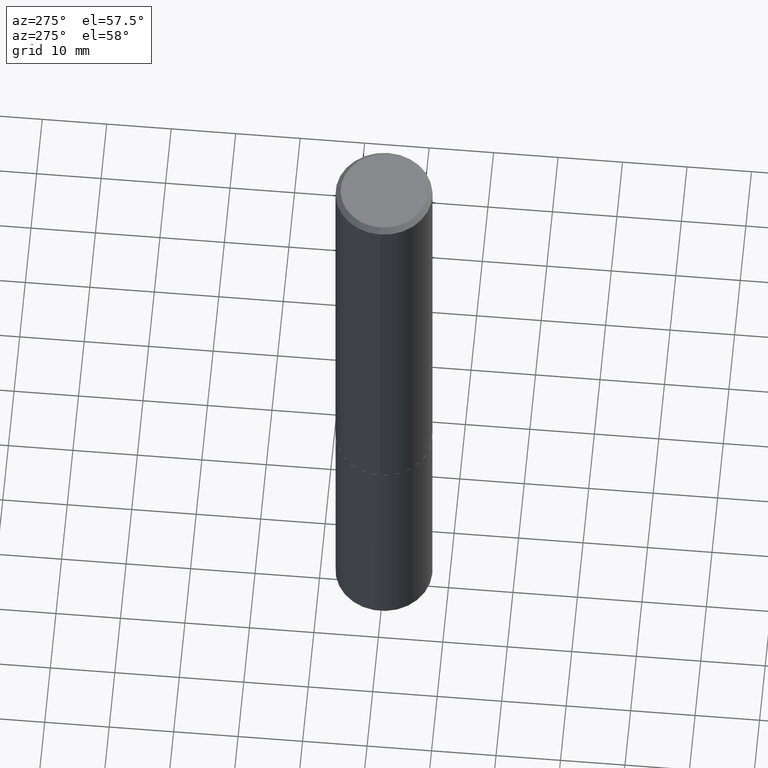
[diagram: clean part render]
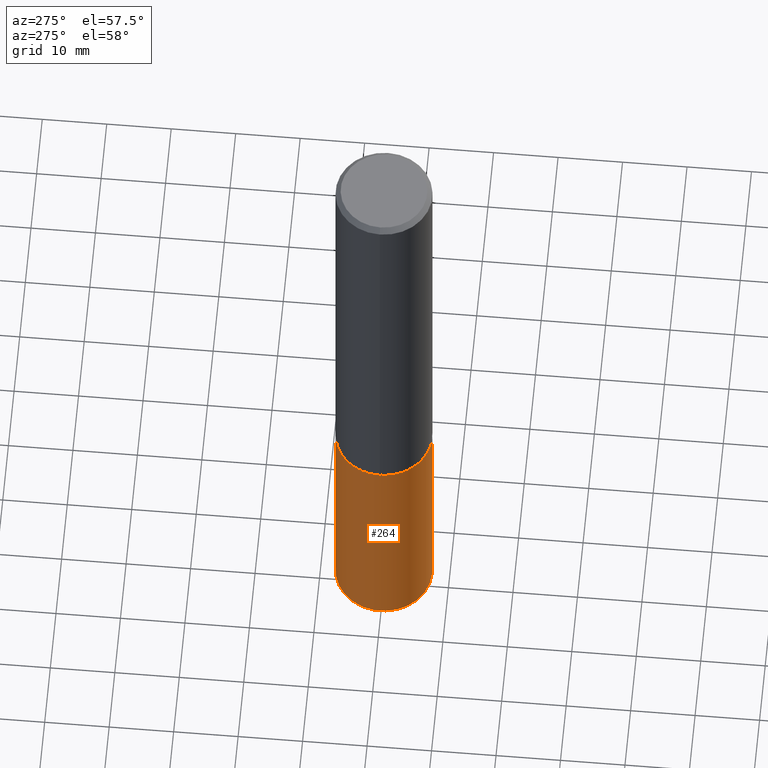
[diagram: same view with one face highlighted and labeled with its STEP entity id]
A machine part, auxiliary view. The second image highlights one B-rep face of the part: STEP entity #264.
In plain terms, the highlighted cylindrical surface (partial cylindrical patch) has radius 7.5006 mm, axis along (-0, 0, 1).
Its self-contained STEP definition (entity closure, byte-faithful):
#7 = VECTOR ( 'NONE', #241, 39.37007874015748143 ) ;
#25 = CYLINDRICAL_SURFACE ( 'NONE', #292, 0.2953000000000000624 ) ;
#33 = CARTESIAN_POINT ( 'NONE',  ( 2.098232698699643346E-15, 0.2952999999999904035, -2.756000000000000671 ) ) ;
#71 = VERTEX_POINT ( 'NONE', #106 ) ;
#83 = DIRECTION ( 'NONE',  ( -6.982962677686266711E-15, -1.000000000000000000, 3.700437512582814508E-15 ) ) ;
#102 = VERTEX_POINT ( 'NONE', #377 ) ;
#106 = CARTESIAN_POINT ( 'NONE',  ( 2.098232698699681211E-15, 0.2952999999999904590, -2.756000000000000671 ) ) ;
#114 = CARTESIAN_POINT ( 'NONE',  ( 1.049356954220298021E-28, -1.498167874454699460E-14, -4.290974603475090632 ) ) ;
#122 = AXIS2_PLACEMENT_3D ( 'NONE', #114, #351, #83 ) ;
#126 = ORIENTED_EDGE ( 'NONE', *, *, #325, .F. ) ;
#146 = AXIS2_PLACEMENT_3D ( 'NONE', #172, #255, #289 ) ;
#150 = DIRECTION ( 'NONE',  ( -6.982962677686266711E-15, -1.000000000000000000, 3.700437512582814508E-15 ) ) ;
#165 = ORIENTED_EDGE ( 'NONE', *, *, #198, .F. ) ;
#167 = EDGE_CURVE ( 'NONE', #205, #306, #259, .T. ) ;
#172 = CARTESIAN_POINT ( 'NONE',  ( 6.739712029846235896E-29, -9.622522569851707902E-15, -2.755999999999999783 ) ) ;
#196 = CARTESIAN_POINT ( 'NONE',  ( -2.062068878720687510E-15, -0.2953000000000096659, -2.755999999999998895 ) ) ;
#198 = EDGE_CURVE ( 'NONE', #71, #306, #314, .T. ) ;
#204 = EDGE_CURVE ( 'NONE', #102, #205, #385, .T. ) ;
#205 = VERTEX_POINT ( 'NONE', #321 ) ;
#208 = DIRECTION ( 'NONE',  ( -2.445550241585909983E-29, 3.491364718714222925E-15, 1.000000000000000000 ) ) ;
#219 = ORIENTED_EDGE ( 'NONE', *, *, #167, .T. ) ;
#233 = FACE_OUTER_BOUND ( 'NONE', #298, .T. ) ;
#240 = LINE ( 'NONE', #33, #7 ) ;
#241 = DIRECTION ( 'NONE',  ( -2.445550241585909983E-29, 3.491364718714222925E-15, 1.000000000000000000 ) ) ;
#255 = DIRECTION ( 'NONE',  ( -2.445550241585909983E-29, 3.491364718714222925E-15, 1.000000000000000000 ) ) ;
#259 = LINE ( 'NONE', #196, #389 ) ;
#264 = ADVANCED_FACE ( 'NONE', ( #233 ), #25, .T. ) ;
#277 = ORIENTED_EDGE ( 'NONE', *, *, #204, .T. ) ;
#286 = DIRECTION ( 'NONE',  ( -2.445550241585909983E-29, 3.491364718714222925E-15, 1.000000000000000000 ) ) ;
#289 = DIRECTION ( 'NONE',  ( -6.982962677686266711E-15, -1.000000000000000000, 3.700437512582814508E-15 ) ) ;
#292 = AXIS2_PLACEMENT_3D ( 'NONE', #390, #208, #150 ) ;
#298 = EDGE_LOOP ( 'NONE', ( #126, #277, #219, #165 ) ) ;
#306 = VERTEX_POINT ( 'NONE', #322 ) ;
#314 = CIRCLE ( 'NONE', #146, 0.2953000000000000624 ) ;
#321 = CARTESIAN_POINT ( 'NONE',  ( -2.062068878720650433E-15, -0.2953000000000151060, -4.290974603475088855 ) ) ;
#322 = CARTESIAN_POINT ( 'NONE',  ( -2.062068878720687510E-15, -0.2953000000000096659, -2.755999999999998895 ) ) ;
#325 = EDGE_CURVE ( 'NONE', #102, #71, #240, .T. ) ;
#351 = DIRECTION ( 'NONE',  ( -2.445550241585909983E-29, 3.491364718714222925E-15, 1.000000000000000000 ) ) ;
#377 = CARTESIAN_POINT ( 'NONE',  ( 2.098232698699681211E-15, 0.2952999999999851299, -4.290974603475091520 ) ) ;
#385 = CIRCLE ( 'NONE', #122, 0.2953000000000000624 ) ;
#389 = VECTOR ( 'NONE', #286, 39.37007874015748143 ) ;
#390 = CARTESIAN_POINT ( 'NONE',  ( 6.739712029846235896E-29, -9.622522569851707902E-15, -2.755999999999999783 ) ) ;